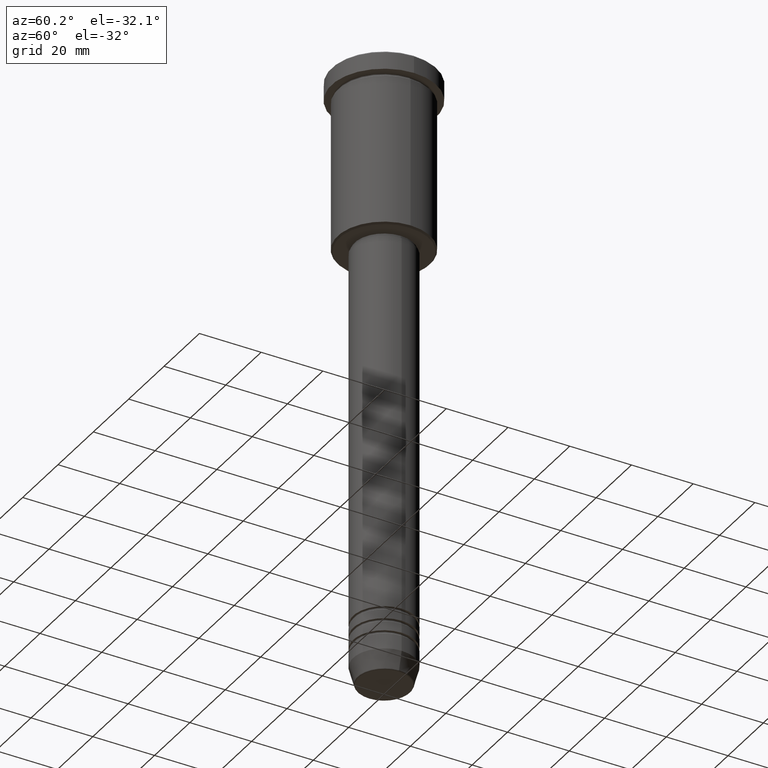
[diagram: clean part render]
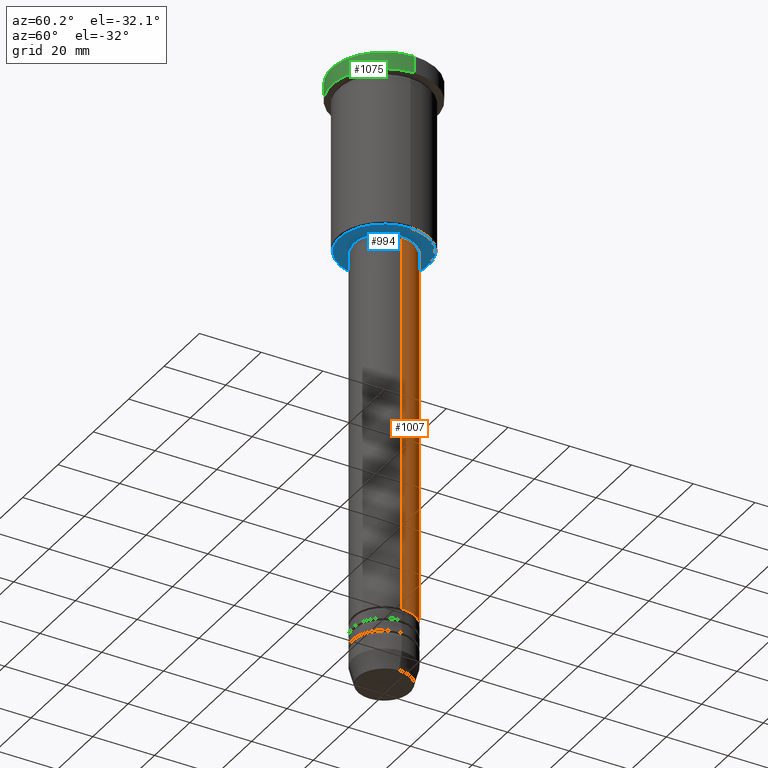
[diagram: same view with three faces highlighted in distinct colors, each labeled with its STEP entity id]
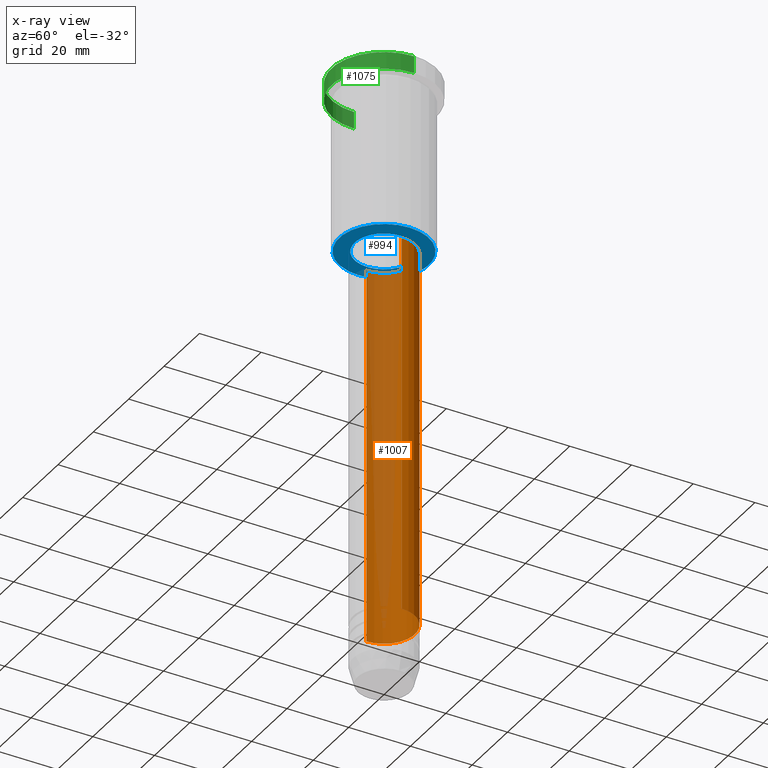
[diagram: x-ray of the same camera — body ghosted, the three highlighted faces saturated]
A machine part, auxiliary view with three faces highlighted in distinct colors.
The next image is the same camera in x-ray (body ghosted, the three faces saturated) — at least one of them is partly hidden behind the body in this view.
Their STEP definitions:

[orange] entity #1007 — the highlighted cylindrical surface (edge-blend (fillet) strip) has radius 10 mm, axis along (-0, -0, 1).
#51 = CIRCLE ( 'NONE', #1170, 9.999999999999998224 ) ;
#52 = CARTESIAN_POINT ( 'NONE',  ( 10.00000000000000000, 0.000000000000000000, 0.000000000000000000 ) ) ;
#61 = CARTESIAN_POINT ( 'NONE',  ( 0.000000000000000000, 0.000000000000000000, -180.0000000000000284 ) ) ;
#115 = DIRECTION ( 'NONE',  ( -0.000000000000000000, -0.000000000000000000, 1.000000000000000000 ) ) ;
#131 = CARTESIAN_POINT ( 'NONE',  ( -9.999999999999998224, 1.224646799147353256E-15, -57.00000000000001421 ) ) ;
#162 = DIRECTION ( 'NONE',  ( -0.000000000000000000, -0.000000000000000000, 1.000000000000000000 ) ) ;
#163 = VERTEX_POINT ( 'NONE', #477 ) ;
#220 = VERTEX_POINT ( 'NONE', #1145 ) ;
#296 = ORIENTED_EDGE ( 'NONE', *, *, #301, .F. ) ;
#301 = EDGE_CURVE ( 'NONE', #491, #1008, #51, .T. ) ;
#344 = AXIS2_PLACEMENT_3D ( 'NONE', #514, #509, #580 ) ;
#450 = EDGE_CURVE ( 'NONE', #163, #1008, #905, .T. ) ;
#455 = CIRCLE ( 'NONE', #842, 10.00000000000000178 ) ;
#477 = CARTESIAN_POINT ( 'NONE',  ( -10.00000000000000178, 1.224646799147353454E-15, -180.0000000000000284 ) ) ;
#491 = VERTEX_POINT ( 'NONE', #510 ) ;
#499 = CYLINDRICAL_SURFACE ( 'NONE', #344, 10.00000000000000000 ) ;
#509 = DIRECTION ( 'NONE',  ( -0.000000000000000000, -0.000000000000000000, 1.000000000000000000 ) ) ;
#510 = CARTESIAN_POINT ( 'NONE',  ( 9.999999999999998224, 0.000000000000000000, -57.00000000000001421 ) ) ;
#512 = EDGE_CURVE ( 'NONE', #220, #491, #572, .T. ) ;
#513 = DIRECTION ( 'NONE',  ( 1.000000000000000000, 0.000000000000000000, 0.000000000000000000 ) ) ;
#514 = CARTESIAN_POINT ( 'NONE',  ( 0.000000000000000000, 0.000000000000000000, 0.000000000000000000 ) ) ;
#529 = ORIENTED_EDGE ( 'NONE', *, *, #618, .T. ) ;
#558 = ORIENTED_EDGE ( 'NONE', *, *, #450, .T. ) ;
#572 = LINE ( 'NONE', #52, #878 ) ;
#580 = DIRECTION ( 'NONE',  ( 1.000000000000000000, 0.000000000000000000, 0.000000000000000000 ) ) ;
#590 = VECTOR ( 'NONE', #1091, 1000.000000000000000 ) ;
#618 = EDGE_CURVE ( 'NONE', #220, #163, #455, .T. ) ;
#723 = CARTESIAN_POINT ( 'NONE',  ( -10.00000000000000000, 1.224646799147353256E-15, 0.000000000000000000 ) ) ;
#725 = DIRECTION ( 'NONE',  ( 1.000000000000000000, 0.000000000000000000, 0.000000000000000000 ) ) ;
#796 = CARTESIAN_POINT ( 'NONE',  ( 0.000000000000000000, 0.000000000000000000, -57.00000000000001421 ) ) ;
#842 = AXIS2_PLACEMENT_3D ( 'NONE', #61, #979, #725 ) ;
#878 = VECTOR ( 'NONE', #115, 1000.000000000000000 ) ;
#898 = ORIENTED_EDGE ( 'NONE', *, *, #512, .F. ) ;
#905 = LINE ( 'NONE', #723, #590 ) ;
#964 = FACE_OUTER_BOUND ( 'NONE', #1160, .T. ) ;
#979 = DIRECTION ( 'NONE',  ( -0.000000000000000000, -0.000000000000000000, 1.000000000000000000 ) ) ;
#1007 = ADVANCED_FACE ( 'NONE', ( #964 ), #499, .T. ) ;
#1008 = VERTEX_POINT ( 'NONE', #131 ) ;
#1091 = DIRECTION ( 'NONE',  ( -0.000000000000000000, -0.000000000000000000, 1.000000000000000000 ) ) ;
#1145 = CARTESIAN_POINT ( 'NONE',  ( 10.00000000000000178, 0.000000000000000000, -180.0000000000000284 ) ) ;
#1160 = EDGE_LOOP ( 'NONE', ( #529, #558, #296, #898 ) ) ;
#1170 = AXIS2_PLACEMENT_3D ( 'NONE', #796, #162, #513 ) ;

[blue] entity #994 — the highlighted planar face has unit normal (0, 0, -1).
#5 = ORIENTED_EDGE ( 'NONE', *, *, #815, .T. ) ;
#26 = CARTESIAN_POINT ( 'NONE',  ( 0.000000000000000000, 15.00000000000000000, -56.00000000000000000 ) ) ;
#31 = EDGE_LOOP ( 'NONE', ( #5, #269 ) ) ;
#41 = DIRECTION ( 'NONE',  ( -1.000000000000000000, 0.000000000000000000, -0.000000000000000000 ) ) ;
#58 = DIRECTION ( 'NONE',  ( 1.000000000000000000, 0.000000000000000000, 0.000000000000000000 ) ) ;
#89 = VERTEX_POINT ( 'NONE', #365 ) ;
#144 = FACE_OUTER_BOUND ( 'NONE', #31, .T. ) ;
#151 = ORIENTED_EDGE ( 'NONE', *, *, #924, .T. ) ;
#155 = DIRECTION ( 'NONE',  ( -0.000000000000000000, -0.000000000000000000, 1.000000000000000000 ) ) ;
#165 = EDGE_CURVE ( 'NONE', #89, #859, #471, .T. ) ;
#269 = ORIENTED_EDGE ( 'NONE', *, *, #165, .T. ) ;
#270 = EDGE_CURVE ( 'NONE', #630, #412, #571, .T. ) ;
#285 = AXIS2_PLACEMENT_3D ( 'NONE', #1066, #155, #58 ) ;
#309 = EDGE_LOOP ( 'NONE', ( #151, #1086 ) ) ;
#325 = CARTESIAN_POINT ( 'NONE',  ( 0.000000000000000000, 0.000000000000000000, -56.00000000000000000 ) ) ;
#365 = CARTESIAN_POINT ( 'NONE',  ( -14.49999999999998401, 1.806354028742345013E-15, -56.00000000000000000 ) ) ;
#383 = CIRCLE ( 'NONE', #1068, 14.49999999999998401 ) ;
#390 = CARTESIAN_POINT ( 'NONE',  ( 0.000000000000000000, 0.000000000000000000, -56.00000000000000000 ) ) ;
#398 = AXIS2_PLACEMENT_3D ( 'NONE', #390, #777, #909 ) ;
#402 = CIRCLE ( 'NONE', #476, 9.500000000000001776 ) ;
#409 = DIRECTION ( 'NONE',  ( 1.000000000000000000, 0.000000000000000000, 0.000000000000000000 ) ) ;
#412 = VERTEX_POINT ( 'NONE', #448 ) ;
#420 = AXIS2_PLACEMENT_3D ( 'NONE', #26, #951, #41 ) ;
#448 = CARTESIAN_POINT ( 'NONE',  ( 9.500000000000001776, 0.000000000000000000, -56.00000000000000000 ) ) ;
#466 = DIRECTION ( 'NONE',  ( -1.000000000000000000, 0.000000000000000000, 0.000000000000000000 ) ) ;
#471 = CIRCLE ( 'NONE', #398, 14.49999999999998401 ) ;
#476 = AXIS2_PLACEMENT_3D ( 'NONE', #325, #761, #409 ) ;
#527 = CARTESIAN_POINT ( 'NONE',  ( -9.500000000000001776, 1.163414459189985682E-15, -56.00000000000000000 ) ) ;
#571 = CIRCLE ( 'NONE', #285, 9.500000000000001776 ) ;
#630 = VERTEX_POINT ( 'NONE', #527 ) ;
#643 = CARTESIAN_POINT ( 'NONE',  ( 0.000000000000000000, 0.000000000000000000, -56.00000000000000000 ) ) ;
#761 = DIRECTION ( 'NONE',  ( -0.000000000000000000, -0.000000000000000000, 1.000000000000000000 ) ) ;
#777 = DIRECTION ( 'NONE',  ( 0.000000000000000000, 0.000000000000000000, -1.000000000000000000 ) ) ;
#815 = EDGE_CURVE ( 'NONE', #859, #89, #383, .T. ) ;
#859 = VERTEX_POINT ( 'NONE', #1180 ) ;
#909 = DIRECTION ( 'NONE',  ( -1.000000000000000000, 0.000000000000000000, 0.000000000000000000 ) ) ;
#924 = EDGE_CURVE ( 'NONE', #412, #630, #402, .T. ) ;
#951 = DIRECTION ( 'NONE',  ( 0.000000000000000000, 0.000000000000000000, -1.000000000000000000 ) ) ;
#971 = FACE_BOUND ( 'NONE', #309, .T. ) ;
#994 = ADVANCED_FACE ( 'NONE', ( #144, #971 ), #1134, .T. ) ;
#1030 = DIRECTION ( 'NONE',  ( 0.000000000000000000, 0.000000000000000000, -1.000000000000000000 ) ) ;
#1066 = CARTESIAN_POINT ( 'NONE',  ( 0.000000000000000000, 0.000000000000000000, -56.00000000000000000 ) ) ;
#1068 = AXIS2_PLACEMENT_3D ( 'NONE', #643, #1030, #466 ) ;
#1086 = ORIENTED_EDGE ( 'NONE', *, *, #270, .T. ) ;
#1134 = PLANE ( 'NONE',  #420 ) ;
#1180 = CARTESIAN_POINT ( 'NONE',  ( 14.49999999999998401, 0.000000000000000000, -56.00000000000000000 ) ) ;

[green] entity #1075 — the highlighted cylindrical surface (partial cylindrical patch) has radius 17 mm, axis along (-0, -0, 1).
#78 = DIRECTION ( 'NONE',  ( 1.000000000000000000, 0.000000000000000000, 0.000000000000000000 ) ) ;
#194 = DIRECTION ( 'NONE',  ( -0.000000000000000000, -0.000000000000000000, 1.000000000000000000 ) ) ;
#224 = CYLINDRICAL_SURFACE ( 'NONE', #1118, 17.00000000000000000 ) ;
#225 = ORIENTED_EDGE ( 'NONE', *, *, #649, .T. ) ;
#275 = CARTESIAN_POINT ( 'NONE',  ( -17.00000000000000000, 2.081899558550500280E-15, -0.5000000000000213163 ) ) ;
#305 = VECTOR ( 'NONE', #194, 1000.000000000000000 ) ;
#317 = CARTESIAN_POINT ( 'NONE',  ( 17.00000000000000000, 0.000000000000000000, -5.999999999999994671 ) ) ;
#318 = ORIENTED_EDGE ( 'NONE', *, *, #856, .T. ) ;
#320 = VERTEX_POINT ( 'NONE', #705 ) ;
#381 = AXIS2_PLACEMENT_3D ( 'NONE', #1088, #819, #1177 ) ;
#404 = VERTEX_POINT ( 'NONE', #1078 ) ;
#416 = DIRECTION ( 'NONE',  ( -0.000000000000000000, -0.000000000000000000, 1.000000000000000000 ) ) ;
#488 = DIRECTION ( 'NONE',  ( 1.000000000000000000, 0.000000000000000000, 0.000000000000000000 ) ) ;
#534 = CIRCLE ( 'NONE', #939, 17.00000000000000000 ) ;
#552 = LINE ( 'NONE', #739, #305 ) ;
#649 = EDGE_CURVE ( 'NONE', #320, #1124, #534, .T. ) ;
#658 = ORIENTED_EDGE ( 'NONE', *, *, #1090, .F. ) ;
#675 = DIRECTION ( 'NONE',  ( -0.000000000000000000, -0.000000000000000000, 1.000000000000000000 ) ) ;
#679 = FACE_OUTER_BOUND ( 'NONE', #1024, .T. ) ;
#691 = VERTEX_POINT ( 'NONE', #275 ) ;
#705 = CARTESIAN_POINT ( 'NONE',  ( -17.00000000000000000, 2.081899558550500280E-15, -5.999999999999994671 ) ) ;
#706 = DIRECTION ( 'NONE',  ( -0.000000000000000000, -0.000000000000000000, 1.000000000000000000 ) ) ;
#735 = EDGE_CURVE ( 'NONE', #404, #691, #892, .T. ) ;
#739 = CARTESIAN_POINT ( 'NONE',  ( 17.00000000000000000, 0.000000000000000000, 0.000000000000000000 ) ) ;
#772 = LINE ( 'NONE', #954, #820 ) ;
#804 = CARTESIAN_POINT ( 'NONE',  ( 0.000000000000000000, 0.000000000000000000, -5.999999999999994671 ) ) ;
#819 = DIRECTION ( 'NONE',  ( 0.000000000000000000, 0.000000000000000000, -1.000000000000000000 ) ) ;
#820 = VECTOR ( 'NONE', #416, 1000.000000000000000 ) ;
#856 = EDGE_CURVE ( 'NONE', #1124, #404, #552, .T. ) ;
#892 = CIRCLE ( 'NONE', #381, 17.00000000000000000 ) ;
#939 = AXIS2_PLACEMENT_3D ( 'NONE', #804, #706, #78 ) ;
#954 = CARTESIAN_POINT ( 'NONE',  ( -17.00000000000000000, 2.081899558550500280E-15, 0.000000000000000000 ) ) ;
#967 = CARTESIAN_POINT ( 'NONE',  ( 0.000000000000000000, 0.000000000000000000, 0.000000000000000000 ) ) ;
#1004 = ORIENTED_EDGE ( 'NONE', *, *, #735, .T. ) ;
#1024 = EDGE_LOOP ( 'NONE', ( #658, #225, #318, #1004 ) ) ;
#1075 = ADVANCED_FACE ( 'NONE', ( #679 ), #224, .T. ) ;
#1078 = CARTESIAN_POINT ( 'NONE',  ( 17.00000000000000000, 0.000000000000000000, -0.5000000000000213163 ) ) ;
#1088 = CARTESIAN_POINT ( 'NONE',  ( 0.000000000000000000, 0.000000000000000000, -0.5000000000000213163 ) ) ;
#1090 = EDGE_CURVE ( 'NONE', #320, #691, #772, .T. ) ;
#1118 = AXIS2_PLACEMENT_3D ( 'NONE', #967, #675, #488 ) ;
#1124 = VERTEX_POINT ( 'NONE', #317 ) ;
#1177 = DIRECTION ( 'NONE',  ( 1.000000000000000000, 0.000000000000000000, 0.000000000000000000 ) ) ;